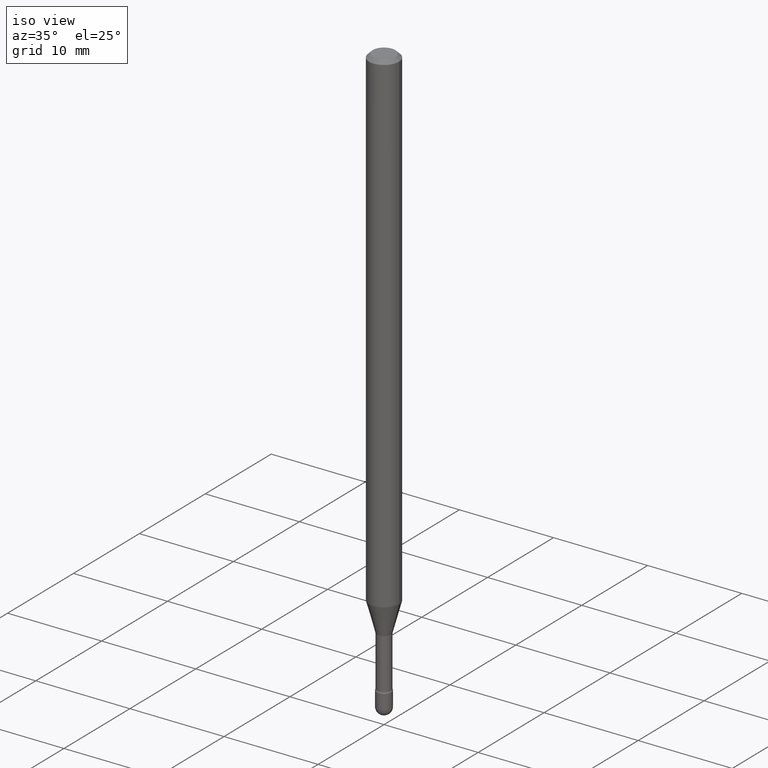
[diagram: clean part render]
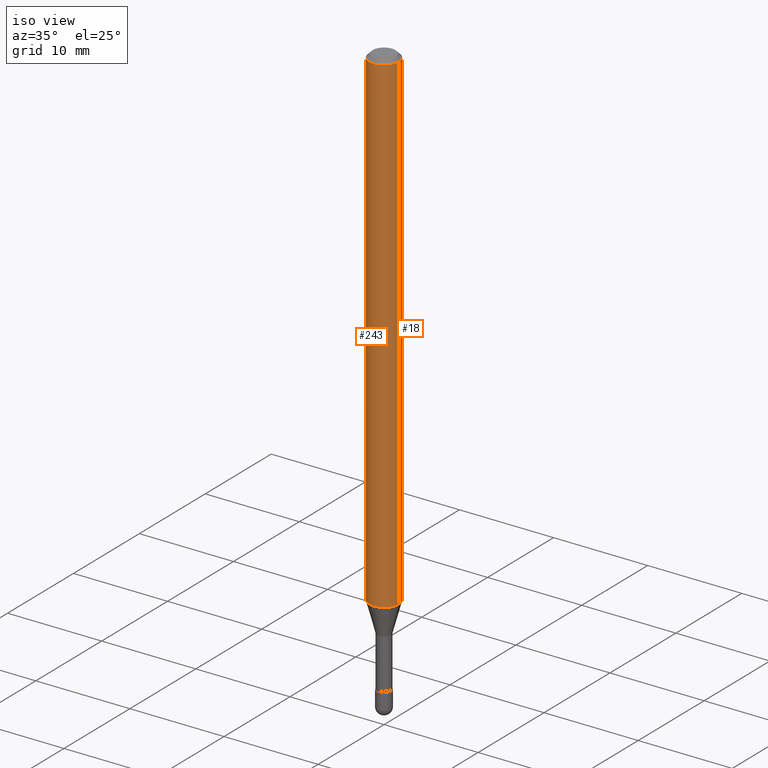
[diagram: same view with one multi-face feature highlighted, each face labeled with its STEP entity id]
A machine part, iso view. The highlighted faces form ONE feature: a constant-radius fillet chain: 2 tangent blend faces with common blend radius 1.5875 mm. The faces share edges in the B-rep.
Their STEP definitions:
[1] entity #18 (Cylinder):
#18 = ADVANCED_FACE ( 'NONE', ( #395 ), #518, .T. ) ;
#81 = EDGE_LOOP ( 'NONE', ( #283, #427, #196, #552 ) ) ;
#89 = LINE ( 'NONE', #350, #224 ) ;
#92 = DIRECTION ( 'NONE',  ( 1.000000000000000000, -6.982962677686262766E-15, 0.000000000000000000 ) ) ;
#93 = VERTEX_POINT ( 'NONE', #520 ) ;
#137 = LINE ( 'NONE', #491, #454 ) ;
#139 = DIRECTION ( 'NONE',  ( -2.445468806185136597E-29, 3.491481338843145583E-15, 1.000000000000000000 ) ) ;
#157 = AXIS2_PLACEMENT_3D ( 'NONE', #474, #245, #375 ) ;
#161 = CARTESIAN_POINT ( 'NONE',  ( -0.06250000000000000000, -6.767691557445882017E-15, -2.065536105567578051 ) ) ;
#173 = DIRECTION ( 'NONE',  ( 1.000000000000000000, -6.982962677686266711E-15, 4.852736867747366207E-29 ) ) ;
#196 = ORIENTED_EDGE ( 'NONE', *, *, #306, .F. ) ;
#224 = VECTOR ( 'NONE', #526, 39.37007874015748143 ) ;
#225 = AXIS2_PLACEMENT_3D ( 'NONE', #492, #302, #173 ) ;
#230 = VERTEX_POINT ( 'NONE', #161 ) ;
#245 = DIRECTION ( 'NONE',  ( -2.445468806185136597E-29, 3.491481338843145583E-15, 1.000000000000000000 ) ) ;
#283 = ORIENTED_EDGE ( 'NONE', *, *, #464, .T. ) ;
#302 = DIRECTION ( 'NONE',  ( -2.445468806185136597E-29, 3.491481338843145583E-15, 1.000000000000000000 ) ) ;
#306 = EDGE_CURVE ( 'NONE', #443, #93, #421, .T. ) ;
#337 = CIRCLE ( 'NONE', #376, 0.06250000000000000000 ) ;
#348 = VERTEX_POINT ( 'NONE', #541 ) ;
#350 = CARTESIAN_POINT ( 'NONE',  ( 0.06250000000000000000, -4.364351673553899931E-16, 4.780733988912490708E-16 ) ) ;
#351 = CARTESIAN_POINT ( 'NONE',  ( 0.06250000000000000000, -4.888073874380391431E-16, -0.01500000000000008271 ) ) ;
#375 = DIRECTION ( 'NONE',  ( 1.000000000000000000, -6.982962677686266711E-15, 0.000000000000000000 ) ) ;
#376 = AXIS2_PLACEMENT_3D ( 'NONE', #489, #139, #92 ) ;
#379 = EDGE_CURVE ( 'NONE', #348, #443, #89, .T. ) ;
#395 = FACE_OUTER_BOUND ( 'NONE', #81, .T. ) ;
#421 = CIRCLE ( 'NONE', #157, 0.06250000000000000000 ) ;
#427 = ORIENTED_EDGE ( 'NONE', *, *, #473, .T. ) ;
#443 = VERTEX_POINT ( 'NONE', #351 ) ;
#446 = DIRECTION ( 'NONE',  ( -2.445468806185136877E-29, 3.491481338843145188E-15, 1.000000000000000000 ) ) ;
#454 = VECTOR ( 'NONE', #446, 39.37007874015748143 ) ;
#464 = EDGE_CURVE ( 'NONE', #348, #230, #337, .T. ) ;
#473 = EDGE_CURVE ( 'NONE', #230, #93, #137, .T. ) ;
#474 = CARTESIAN_POINT ( 'NONE',  ( 3.668203209277725232E-31, -5.237222008264747365E-17, -0.01500000000000008271 ) ) ;
#489 = CARTESIAN_POINT ( 'NONE',  ( 5.051204114214641690E-29, -7.211780767295945422E-15, -2.065536105567578051 ) ) ;
#491 = CARTESIAN_POINT ( 'NONE',  ( -0.06250000000000000000, 4.440892098500642925E-16, 4.780733988912429571E-16 ) ) ;
#492 = CARTESIAN_POINT ( 'NONE',  ( -1.169113584055446105E-44, 1.669184350826100908E-30, 4.780733988912460139E-16 ) ) ;
#518 = CYLINDRICAL_SURFACE ( 'NONE', #225, 0.06250000000000000000 ) ;
#520 = CARTESIAN_POINT ( 'NONE',  ( -0.06250000000000000000, -3.187987283839233832E-15, -0.01500000000000008271 ) ) ;
#526 = DIRECTION ( 'NONE',  ( -2.445468806185136877E-29, 3.491481338843145188E-15, 1.000000000000000000 ) ) ;
#541 = CARTESIAN_POINT ( 'NONE',  ( 0.06250000000000000000, -7.648215934651337091E-15, -2.065536105567578051 ) ) ;
#552 = ORIENTED_EDGE ( 'NONE', *, *, #379, .F. ) ;
[2] entity #243 (Cylinder):
#24 = AXIS2_PLACEMENT_3D ( 'NONE', #325, #156, #328 ) ;
#43 = AXIS2_PLACEMENT_3D ( 'NONE', #507, #119, #208 ) ;
#44 = EDGE_CURVE ( 'NONE', #93, #443, #477, .T. ) ;
#67 = ORIENTED_EDGE ( 'NONE', *, *, #473, .F. ) ;
#69 = CYLINDRICAL_SURFACE ( 'NONE', #24, 0.06250000000000000000 ) ;
#84 = ORIENTED_EDGE ( 'NONE', *, *, #379, .T. ) ;
#89 = LINE ( 'NONE', #350, #224 ) ;
#93 = VERTEX_POINT ( 'NONE', #520 ) ;
#119 = DIRECTION ( 'NONE',  ( -2.445468806185136597E-29, 3.491481338843145583E-15, 1.000000000000000000 ) ) ;
#137 = LINE ( 'NONE', #491, #454 ) ;
#156 = DIRECTION ( 'NONE',  ( -2.445468806185136597E-29, 3.491481338843145583E-15, 1.000000000000000000 ) ) ;
#161 = CARTESIAN_POINT ( 'NONE',  ( -0.06250000000000000000, -6.767691557445882017E-15, -2.065536105567578051 ) ) ;
#208 = DIRECTION ( 'NONE',  ( 1.000000000000000000, -6.982962677686262766E-15, 0.000000000000000000 ) ) ;
#224 = VECTOR ( 'NONE', #526, 39.37007874015748143 ) ;
#230 = VERTEX_POINT ( 'NONE', #161 ) ;
#234 = EDGE_CURVE ( 'NONE', #230, #348, #267, .T. ) ;
#243 = ADVANCED_FACE ( 'NONE', ( #281 ), #69, .T. ) ;
#255 = CARTESIAN_POINT ( 'NONE',  ( 3.668203209277725232E-31, -5.237222008264747365E-17, -0.01500000000000008271 ) ) ;
#267 = CIRCLE ( 'NONE', #43, 0.06250000000000000000 ) ;
#281 = FACE_OUTER_BOUND ( 'NONE', #461, .T. ) ;
#305 = ORIENTED_EDGE ( 'NONE', *, *, #44, .F. ) ;
#322 = ORIENTED_EDGE ( 'NONE', *, *, #234, .T. ) ;
#325 = CARTESIAN_POINT ( 'NONE',  ( -1.169113584055446105E-44, 1.669184350826100908E-30, 4.780733988912460139E-16 ) ) ;
#328 = DIRECTION ( 'NONE',  ( 1.000000000000000000, -6.982962677686266711E-15, 4.852736867747366207E-29 ) ) ;
#348 = VERTEX_POINT ( 'NONE', #541 ) ;
#350 = CARTESIAN_POINT ( 'NONE',  ( 0.06250000000000000000, -4.364351673553899931E-16, 4.780733988912490708E-16 ) ) ;
#351 = CARTESIAN_POINT ( 'NONE',  ( 0.06250000000000000000, -4.888073874380391431E-16, -0.01500000000000008271 ) ) ;
#379 = EDGE_CURVE ( 'NONE', #348, #443, #89, .T. ) ;
#423 = AXIS2_PLACEMENT_3D ( 'NONE', #255, #447, #487 ) ;
#443 = VERTEX_POINT ( 'NONE', #351 ) ;
#446 = DIRECTION ( 'NONE',  ( -2.445468806185136877E-29, 3.491481338843145188E-15, 1.000000000000000000 ) ) ;
#447 = DIRECTION ( 'NONE',  ( -2.445468806185136597E-29, 3.491481338843145583E-15, 1.000000000000000000 ) ) ;
#454 = VECTOR ( 'NONE', #446, 39.37007874015748143 ) ;
#461 = EDGE_LOOP ( 'NONE', ( #67, #322, #84, #305 ) ) ;
#473 = EDGE_CURVE ( 'NONE', #230, #93, #137, .T. ) ;
#477 = CIRCLE ( 'NONE', #423, 0.06250000000000000000 ) ;
#487 = DIRECTION ( 'NONE',  ( 1.000000000000000000, -6.982962677686266711E-15, 0.000000000000000000 ) ) ;
#491 = CARTESIAN_POINT ( 'NONE',  ( -0.06250000000000000000, 4.440892098500642925E-16, 4.780733988912429571E-16 ) ) ;
#507 = CARTESIAN_POINT ( 'NONE',  ( 5.051204114214641690E-29, -7.211780767295945422E-15, -2.065536105567578051 ) ) ;
#520 = CARTESIAN_POINT ( 'NONE',  ( -0.06250000000000000000, -3.187987283839233832E-15, -0.01500000000000008271 ) ) ;
#526 = DIRECTION ( 'NONE',  ( -2.445468806185136877E-29, 3.491481338843145188E-15, 1.000000000000000000 ) ) ;
#541 = CARTESIAN_POINT ( 'NONE',  ( 0.06250000000000000000, -7.648215934651337091E-15, -2.065536105567578051 ) ) ;